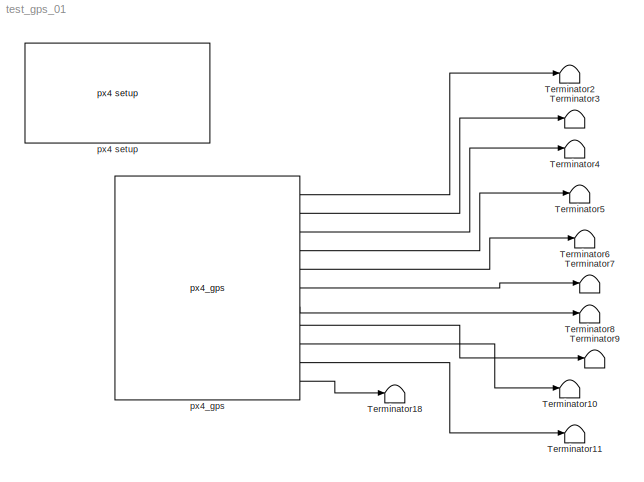
MODEL test_gps_01
KIND model
CONFIG InitFcn = px4_ap1_mdl_callback('check_model');
BLOCK [Terminator] Terminator10
  SID = 1
BLOCK [Terminator] Terminator11
  SID = 2
BLOCK [Terminator] Terminator18
  SID = 3
BLOCK [Terminator] Terminator2
  SID = 4
BLOCK [Terminator] Terminator3
  SID = 5
BLOCK [Terminator] Terminator4
  SID = 6
BLOCK [Terminator] Terminator5
  SID = 7
BLOCK [Terminator] Terminator6
  SID = 8
BLOCK [Terminator] Terminator7
  SID = 9
BLOCK [Terminator] Terminator8
  SID = 10
BLOCK [Terminator] Terminator9
  SID = 11
BLOCK [Reference] px4 setup  REF=px4_ap1_px4setup_lib/px4 setup
  Ports = []
  SID = 12
  SampleTimeValue = 0.001
  SourceBlock = px4_ap1_px4setup_lib/px4 setup
  SourceType = PX4_Target_Setup
  cbBuild = on
  cbPort = COM3
  cbUpload = off
  cpuLoad = off
  debugmode = on
BLOCK [Reference] px4_gps  REF=px4_ap1_gps_lib/px4_gps
  Description = Setup for PX4 native software
  Ports = [0, 11]
  SID = 13
  SourceBlock = px4_ap1_gps_lib/px4_gps
  SourceType = PX4_GPS
  baud = 9600
  course = on
  date = on
  latlon = on
  speed = on
  time = on
LINE px4_gps:1 -> Terminator2:1
LINE px4_gps:10 -> Terminator11:1
LINE px4_gps:11 -> Terminator18:1
LINE px4_gps:2 -> Terminator3:1
LINE px4_gps:3 -> Terminator4:1
LINE px4_gps:4 -> Terminator5:1
LINE px4_gps:5 -> Terminator6:1
LINE px4_gps:6 -> Terminator7:1
LINE px4_gps:7 -> Terminator8:1
LINE px4_gps:8 -> Terminator9:1
LINE px4_gps:9 -> Terminator10:1
